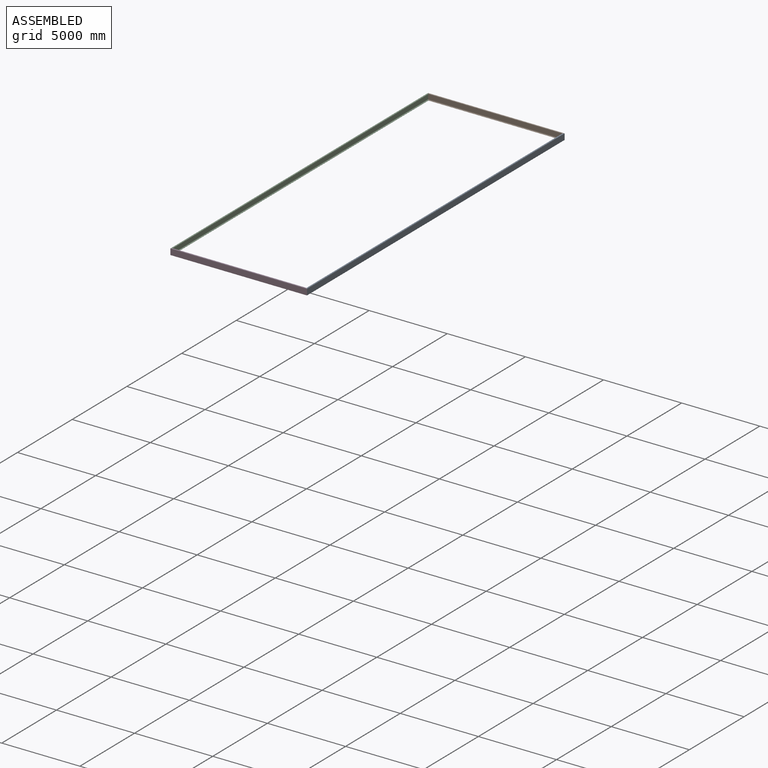
[diagram: assembled view]
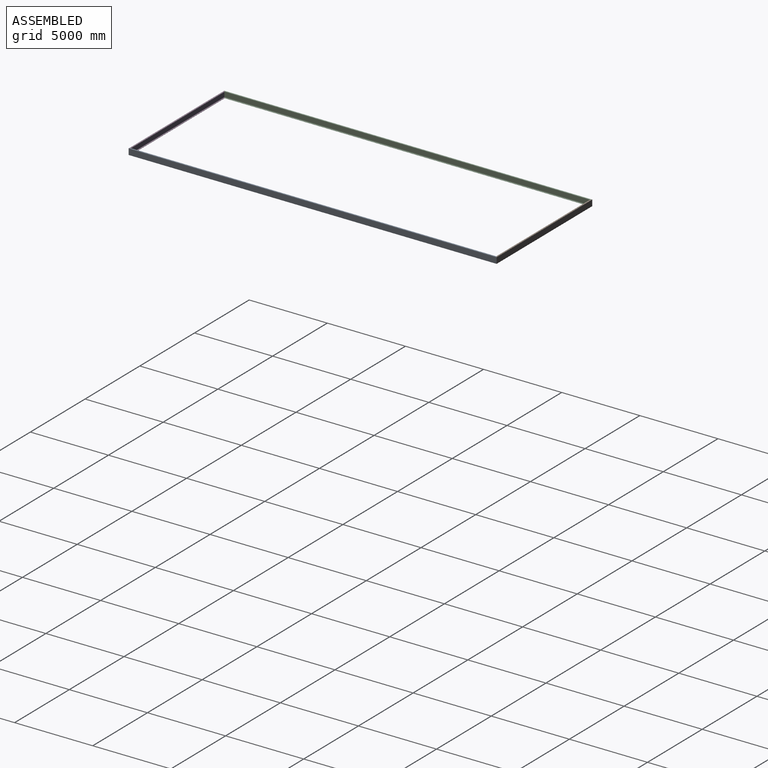
[diagram: assembled view, second angle]
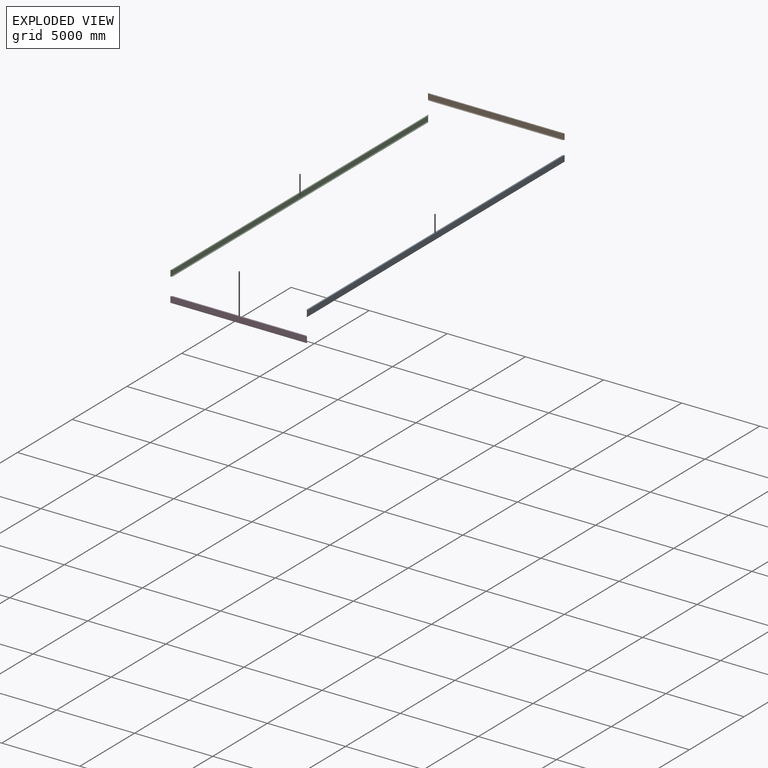
[diagram: exploded view]
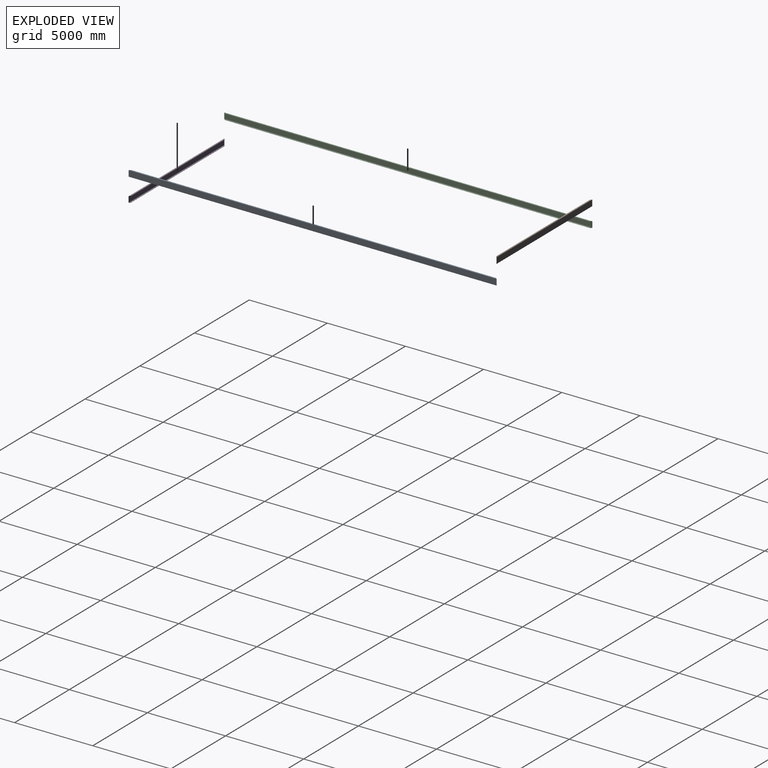
[diagram: exploded view, second angle]
ASSEMBLY  parts=4 mates=3
PART A: 14 faces, bbox 88.9x23545.8x381 mm
  f0: plane 23368x5.08mm, normal (1,0,0), area 118709.4mm2, adj f6,f10,f12,f13
  f1: plane 23368x5.08mm, normal (1,0,0), area 118709.4mm2, adj f3,f7,f12,f13
  f2: plane 23505.16x60.96mm, normal (0,0,-1), area 1429158.4mm2, adj f6,f9,f12,f13
  f3: plane 23545.8x88.9mm, normal (0,0,-1), area 2085318.4mm2, adj f1,f11,f12,f13
  f4: plane 23505.16x60.96mm, normal (0,0,1), area 1429158.4mm2, adj f7,f8,f12,f13
  f5: plane 23520.4x340.36mm, normal (1,0,0), area 8005403.3mm2, adj f8,f9,f12,f13
  f6: cylinder r=7.62mm len=23383.24mm, axis (0,1,0), area 279768.8mm2, adj f0,f2,f12,f13
  f7: cylinder r=7.62mm len=23383.24mm, axis (0,1,0), area 279768.8mm2, adj f1,f4,f12,f13
  f8: cylinder r=7.62mm len=23520.4mm, axis (0,-1,0), area 281460.4mm2, adj f4,f5,f12,f13
  f9: cylinder r=7.62mm len=23520.4mm, axis (0,-1,0), area 281460.4mm2, adj f2,f5,f12,f13
  f10: plane 23545.8x88.9mm, normal (0,0,1), area 2085318.4mm2, adj f0,f11,f12,f13
  f11: plane 23545.8x381mm, normal (-1,0,0), area 8970949.8mm2, adj f3,f10,f12,f13
  f12: plane 381x88.9mm, normal (0.71,0.71,0), area 9580.1mm2, adj f0,f1,f2,f3,f4,f5,f6,f7
  f13: plane 381x88.9mm, normal (0.71,-0.71,0), area 9580.1mm2, adj f0,f1,f2,f3,f4,f5,f6,f7
PART B: 14 faces, bbox 88.9x8737.6x381 mm
  f0: plane 8559.8x5.08mm, normal (1,0,0), area 43483.8mm2, adj f6,f10,f12,f13
  f1: plane 8559.8x5.08mm, normal (1,0,0), area 43483.8mm2, adj f3,f7,f12,f13
  f2: plane 8696.96x60.96mm, normal (0,0,-1), area 526450.6mm2, adj f6,f9,f12,f13
  f3: plane 8737.6x88.9mm, normal (0,0,-1), area 768869.4mm2, adj f1,f11,f12,f13
  f4: plane 8696.96x60.96mm, normal (0,0,1), area 526450.6mm2, adj f7,f8,f12,f13
  f5: plane 8712.2x340.36mm, normal (1,0,0), area 2965284.4mm2, adj f8,f9,f12,f13
  f6: cylinder r=7.62mm len=8575.04mm, axis (0,1,0), area 102522.5mm2, adj f0,f2,f12,f13
  f7: cylinder r=7.62mm len=8575.04mm, axis (0,1,0), area 102522.5mm2, adj f1,f4,f12,f13
  f8: cylinder r=7.62mm len=8712.2mm, axis (0,-1,0), area 104214.1mm2, adj f4,f5,f12,f13
  f9: cylinder r=7.62mm len=8712.2mm, axis (0,-1,0), area 104214.1mm2, adj f2,f5,f12,f13
  f10: plane 8737.6x88.9mm, normal (0,0,1), area 768869.4mm2, adj f0,f11,f12,f13
  f11: plane 8737.6x381mm, normal (-1,0,0), area 3329025.6mm2, adj f3,f10,f12,f13
  f12: plane 381x88.9mm, normal (0.71,0.71,0), area 9580.1mm2, adj f0,f1,f2,f3,f4,f5,f6,f7
  f13: plane 381x88.9mm, normal (0.71,-0.71,0), area 9580.1mm2, adj f0,f1,f2,f3,f4,f5,f6,f7
PART C: same geometry as A
PART D: same geometry as B
PLACE A rot(axis=(0,0,1),180deg) t=(5104.9,-26596.39,-3323.51)mm
PLACE B rot(axis=(0,0,-1),90deg) t=(5149.35,-3095.04,-3323.51)mm
PLACE C rot(axis=(-0.14,-0.98,-0.11),0deg) t=(-3543.8,-3050.59,-3323.51)mm
PLACE D rot(axis=(0,0,1),90deg) t=(-3588.25,-26551.94,-3323.51)mm
MATE fastened C.f10 <-> B.f10  axis (0,0,1) through (-3588.25,-3050.59,-3133.01)mm
MATE fastened D.f10 <-> C.f10  axis (0,0,-1) through (-3588.25,-26596.39,-3133.01)mm
MATE fastened A.f10 <-> B.f10  axis (0,0,1) through (5149.35,-3050.59,-3133.01)mm
